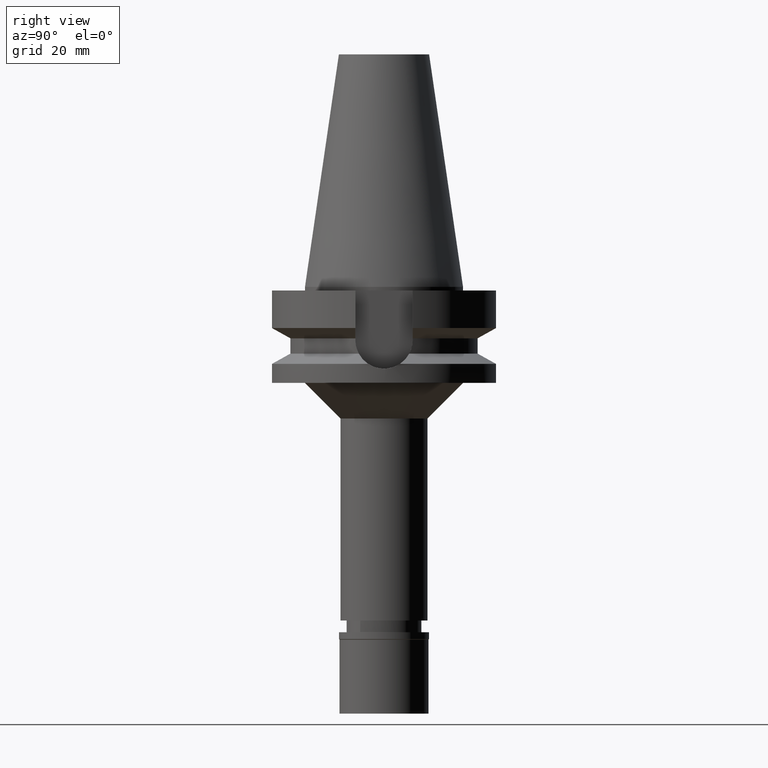
[diagram: clean part render]
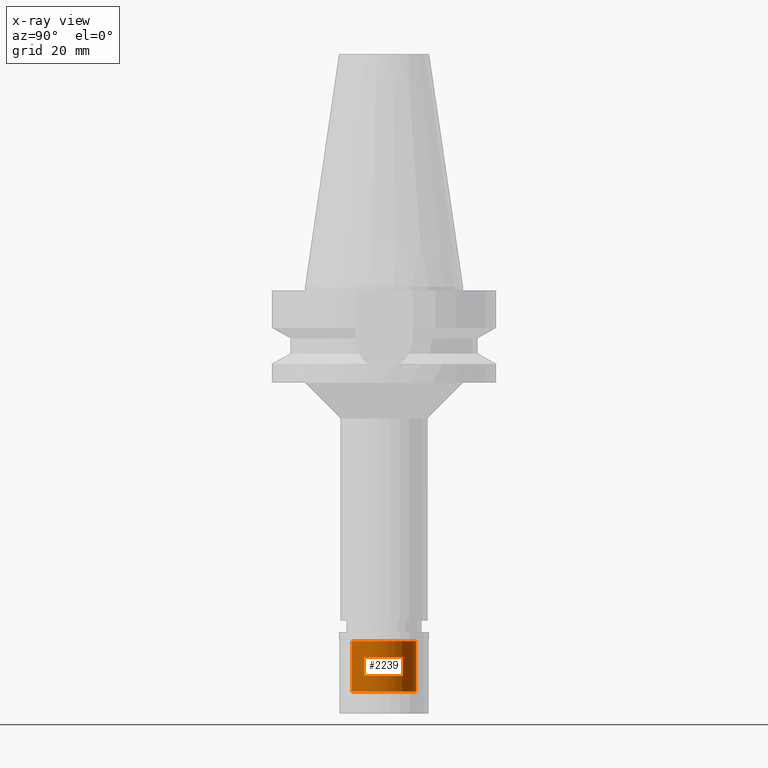
[diagram: x-ray — body ghosted, one internal face saturated and labeled with its STEP entity id]
A machine part, right view, then the same camera in x-ray: the body is ghosted and one INTERNAL B-rep face — a face not visible from any outside direction — is saturated and labeled: STEP entity #2239.
In plain terms, the highlighted cylindrical surface (edge-blend (fillet) strip) has radius 9 mm, axis along (0, 0, -1).
Its self-contained STEP definition (entity closure, byte-faithful):
#197 = CIRCLE ( 'NONE', #2694, 9.000000000000000000 ) ;
#258 = LINE ( 'NONE', #2907, #2045 ) ;
#400 = ORIENTED_EDGE ( 'NONE', *, *, #1700, .T. ) ;
#448 = DIRECTION ( 'NONE',  ( 0.0000000000000000000, 0.0000000000000000000, -1.000000000000000000 ) ) ;
#522 = EDGE_CURVE ( 'NONE', #2974, #2043, #1453, .T. ) ;
#696 = VERTEX_POINT ( 'NONE', #1698 ) ;
#722 = CARTESIAN_POINT ( 'NONE',  ( 0.0000000000000000000, 0.0000000000000000000, 0.0000000000000000000 ) ) ;
#725 = EDGE_CURVE ( 'NONE', #2730, #696, #258, .T. ) ;
#943 = DIRECTION ( 'NONE',  ( 0.0000000000000000000, 0.0000000000000000000, -1.000000000000000000 ) ) ;
#1014 = AXIS2_PLACEMENT_3D ( 'NONE', #1532, #1797, #3018 ) ;
#1068 = CIRCLE ( 'NONE', #1014, 9.000000000000000000 ) ;
#1209 = EDGE_LOOP ( 'NONE', ( #1425, #2151, #400, #1398 ) ) ;
#1398 = ORIENTED_EDGE ( 'NONE', *, *, #725, .F. ) ;
#1404 = FACE_OUTER_BOUND ( 'NONE', #1209, .T. ) ;
#1425 = ORIENTED_EDGE ( 'NONE', *, *, #3079, .T. ) ;
#1453 = LINE ( 'NONE', #1489, #3095 ) ;
#1464 = AXIS2_PLACEMENT_3D ( 'NONE', #722, #943, #1685 ) ;
#1489 = CARTESIAN_POINT ( 'NONE',  ( 0.0000000000000000000, -9.000000000000000000, -16.69999999999999929 ) ) ;
#1532 = CARTESIAN_POINT ( 'NONE',  ( 0.0000000000000000000, 0.0000000000000000000, -2.500000000000000000 ) ) ;
#1685 = DIRECTION ( 'NONE',  ( 0.0000000000000000000, -1.000000000000000000, 0.0000000000000000000 ) ) ;
#1698 = CARTESIAN_POINT ( 'NONE',  ( 0.0000000000000000000, 9.000000000000000000, -2.500000000000000000 ) ) ;
#1700 = EDGE_CURVE ( 'NONE', #2043, #696, #1068, .T. ) ;
#1797 = DIRECTION ( 'NONE',  ( 0.0000000000000000000, 0.0000000000000000000, 1.000000000000000000 ) ) ;
#2043 = VERTEX_POINT ( 'NONE', #2967 ) ;
#2045 = VECTOR ( 'NONE', #2938, 1000.000000000000000 ) ;
#2070 = CARTESIAN_POINT ( 'NONE',  ( 0.0000000000000000000, -9.000000000000000000, -16.69999999999999929 ) ) ;
#2151 = ORIENTED_EDGE ( 'NONE', *, *, #522, .T. ) ;
#2155 = CYLINDRICAL_SURFACE ( 'NONE', #1464, 9.000000000000000000 ) ;
#2239 = ADVANCED_FACE ( 'NONE', ( #1404 ), #2155, .F. ) ;
#2416 = DIRECTION ( 'NONE',  ( 0.0000000000000000000, 0.0000000000000000000, 1.000000000000000000 ) ) ;
#2422 = CARTESIAN_POINT ( 'NONE',  ( 0.0000000000000000000, 0.0000000000000000000, -16.69999999999999929 ) ) ;
#2656 = DIRECTION ( 'NONE',  ( 0.0000000000000000000, 1.000000000000000000, 0.0000000000000000000 ) ) ;
#2694 = AXIS2_PLACEMENT_3D ( 'NONE', #2422, #448, #2656 ) ;
#2730 = VERTEX_POINT ( 'NONE', #2937 ) ;
#2907 = CARTESIAN_POINT ( 'NONE',  ( 0.0000000000000000000, 9.000000000000000000, -16.69999999999999929 ) ) ;
#2937 = CARTESIAN_POINT ( 'NONE',  ( 0.0000000000000000000, 9.000000000000000000, -16.69999999999999929 ) ) ;
#2938 = DIRECTION ( 'NONE',  ( 0.0000000000000000000, 0.0000000000000000000, 1.000000000000000000 ) ) ;
#2967 = CARTESIAN_POINT ( 'NONE',  ( 0.0000000000000000000, -9.000000000000000000, -2.500000000000000000 ) ) ;
#2974 = VERTEX_POINT ( 'NONE', #2070 ) ;
#3018 = DIRECTION ( 'NONE',  ( 0.0000000000000000000, -1.000000000000000000, 0.0000000000000000000 ) ) ;
#3079 = EDGE_CURVE ( 'NONE', #2730, #2974, #197, .T. ) ;
#3095 = VECTOR ( 'NONE', #2416, 1000.000000000000000 ) ;